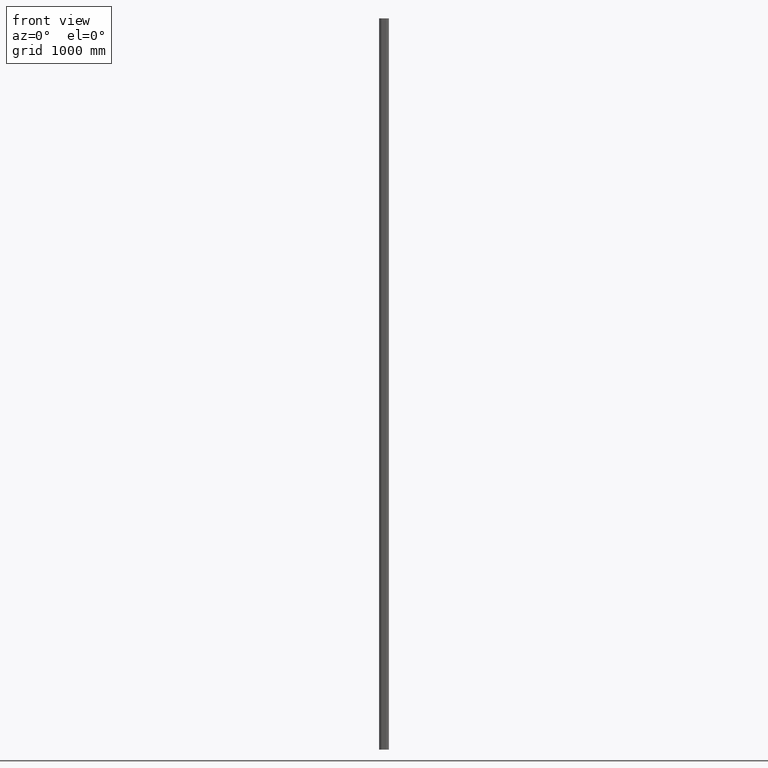
[diagram: clean part render]
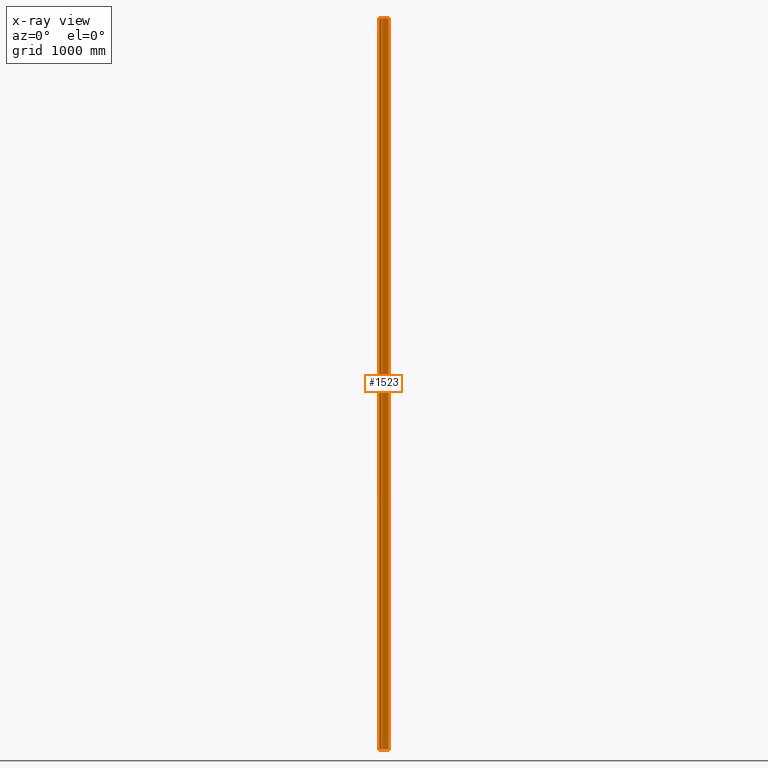
[diagram: x-ray — body ghosted, one internal face saturated and labeled with its STEP entity id]
A machine part, front view, then the same camera in x-ray: the body is ghosted and one INTERNAL B-rep face — a face not visible from any outside direction — is saturated and labeled: STEP entity #1523.
In plain terms, the highlighted face is a freeform B-spline surface patch.
Its self-contained STEP definition (entity closure, byte-faithful):
#38 = CARTESIAN_POINT ( 'NONE',  ( -38.53888054691018539, -1.406978759875032958, -3000.000000000000000 ) ) ;
#52 = CARTESIAN_POINT ( 'NONE',  ( 33.21602684802288508, 9.897086653402725531, -3000.000000000000000 ) ) ;
#165 = CARTESIAN_POINT ( 'NONE',  ( 38.53957975763789534, 1.397872880490210301, 3000.000000000000000 ) ) ;
#213 = CARTESIAN_POINT ( 'NONE',  ( -38.53957975763789534, 1.397872880490219849, -3000.000000000000000 ) ) ;
#234 = CARTESIAN_POINT ( 'NONE',  ( 12.98132575288632928, 17.77677817678706518, 3000.000000000000000 ) ) ;
#272 = CARTESIAN_POINT ( 'NONE',  ( -37.29816237593282580, 5.170512203791696848, -3000.000000000000000 ) ) ;
#351 = CARTESIAN_POINT ( 'NONE',  ( -24.90821135187026059, -14.09688668531120825, 3000.000000000000000 ) ) ;
#466 = VERTEX_POINT ( 'NONE', #10537 ) ;
#648 = LINE ( 'NONE', #13366, #1079 ) ;
#1079 = VECTOR ( 'NONE', #12172, 1000.000000000000000 ) ;
#1162 = CARTESIAN_POINT ( 'NONE',  ( 28.84268964638304666, -12.28711628548776957, 3000.000000000000000 ) ) ;
#1306 = ORIENTED_EDGE ( 'NONE', *, *, #14052, .F. ) ;
#1381 = CARTESIAN_POINT ( 'NONE',  ( 37.60144509639259525, -4.237141637028585706, -3000.000000000000000 ) ) ;
#1431 = CARTESIAN_POINT ( 'NONE',  ( -12.98132575288629020, 17.77677817678707228, -3000.000000000000000 ) ) ;
#1493 = CARTESIAN_POINT ( 'NONE',  ( 37.29816237593282580, 5.170512203791684414, -3000.000000000000000 ) ) ;
#1516 = CARTESIAN_POINT ( 'NONE',  ( 28.84268964638304666, -12.28711628548776957, 3000.000000000000000 ) ) ;
#1523 = ADVANCED_FACE ( 'NONE', ( #7170 ), #16029, .T. ) ;
#1543 = CARTESIAN_POINT ( 'NONE',  ( 24.49264576672874583, 14.65689935218413176, -3000.000000000000000 ) ) ;
#1551 = CARTESIAN_POINT ( 'NONE',  ( 38.53888054691018539, -1.406978759875043616, -3000.000000000000000 ) ) ;
#1574 = CARTESIAN_POINT ( 'NONE',  ( -37.60144509639262367, -4.237141637028573271, 3000.000000000000000 ) ) ;
#1600 = CARTESIAN_POINT ( 'NONE',  ( 35.66612352025637023, -7.068490167699225779, 3000.000000000000000 ) ) ;
#1617 = CARTESIAN_POINT ( 'NONE',  ( 19.55954398313255993, -15.89465264424237390, 3000.000000000000000 ) ) ;
#1737 = CARTESIAN_POINT ( 'NONE',  ( -38.53957975763789534, 1.397872880490219849, 3000.000000000000000 ) ) ;
#2431 = CARTESIAN_POINT ( 'NONE',  ( 19.55954398313255993, -15.89465264424237390, 3000.000000000000000 ) ) ;
#2758 = CARTESIAN_POINT ( 'NONE',  ( -38.53957975763789534, 1.397872880490219849, 3000.000000000000000 ) ) ;
#2812 = CARTESIAN_POINT ( 'NONE',  ( -24.49264576672872096, 14.65689935218414064, -3000.000000000000000 ) ) ;
#2813 = VERTEX_POINT ( 'NONE', #16385 ) ;
#2837 = CARTESIAN_POINT ( 'NONE',  ( 21.43096283216591402, -15.33824190983948021, 3000.000000000000000 ) ) ;
#2863 = CARTESIAN_POINT ( 'NONE',  ( -33.21602684802286376, 9.897086653402739742, -3000.000000000000000 ) ) ;
#2882 = CARTESIAN_POINT ( 'NONE',  ( -28.84268964638307153, -12.28711628548775181, 3000.000000000000000 ) ) ;
#2883 = CARTESIAN_POINT ( 'NONE',  ( 38.53957975763789534, 1.397872880490210301, -3000.000000000000000 ) ) ;
#2919 = CARTESIAN_POINT ( 'NONE',  ( -24.49264576672872096, 14.65689935218414064, 3000.000000000000000 ) ) ;
#2946 = CARTESIAN_POINT ( 'NONE',  ( 38.53888054691018539, -1.406978759875043616, 3000.000000000000000 ) ) ;
#3006 = CARTESIAN_POINT ( 'NONE',  ( -19.55954398313258835, -15.89465264424235968, 3000.000000000000000 ) ) ;
#3053 = CARTESIAN_POINT ( 'NONE',  ( 37.60144509639259525, -4.237141637028585706, 3000.000000000000000 ) ) ;
#3397 = CARTESIAN_POINT ( 'NONE',  ( 19.55954398313255993, -15.89465264424237390, -3000.000000000000000 ) ) ;
#3743 = CARTESIAN_POINT ( 'NONE',  ( 18.63046422156533310, -16.14577533591634406, -3000.000000000000000 ) ) ;
#3898 = DIRECTION ( 'NONE',  ( -0.000000000000000000, -0.000000000000000000, -1.000000000000000000 ) ) ;
#4036 = CARTESIAN_POINT ( 'NONE',  ( -38.53888054691018539, -1.406978759875032958, 3000.000000000000000 ) ) ;
#4092 = CARTESIAN_POINT ( 'NONE',  ( -19.55954398313258835, -15.89465264424235968, 3000.000000000000000 ) ) ;
#4108 = CARTESIAN_POINT ( 'NONE',  ( -24.49264576672872096, 14.65689935218414064, 3000.000000000000000 ) ) ;
#4136 = CARTESIAN_POINT ( 'NONE',  ( -35.66612352025635602, -7.068490167699219562, -3000.000000000000000 ) ) ;
#4156 = CARTESIAN_POINT ( 'NONE',  ( -33.21602684802286376, 9.897086653402739742, 3000.000000000000000 ) ) ;
#4199 = CARTESIAN_POINT ( 'NONE',  ( -21.43096283216595666, -15.33824190983946956, -3000.000000000000000 ) ) ;
#5089 = CARTESIAN_POINT ( 'NONE',  ( 21.43096283216591402, -15.33824190983948021, -3000.000000000000000 ) ) ;
#5347 = CARTESIAN_POINT ( 'NONE',  ( -37.29816237593282580, 5.170512203791696848, -3000.000000000000000 ) ) ;
#5409 = CARTESIAN_POINT ( 'NONE',  ( 12.98132575288632928, 17.77677817678706518, 3000.000000000000000 ) ) ;
#5468 = CARTESIAN_POINT ( 'NONE',  ( 33.21602684802288508, 9.897086653402725531, -3000.000000000000000 ) ) ;
#5475 = CARTESIAN_POINT ( 'NONE',  ( 24.49264576672874583, 14.65689935218413176, -3000.000000000000000 ) ) ;
#5528 = CARTESIAN_POINT ( 'NONE',  ( -38.53888054691018539, -1.406978759875032958, -3000.000000000000000 ) ) ;
#5565 = CARTESIAN_POINT ( 'NONE',  ( -24.49264576672872096, 14.65689935218414064, -3000.000000000000000 ) ) ;
#5594 = CARTESIAN_POINT ( 'NONE',  ( 24.90821135187024638, -14.09688668531122424, 3000.000000000000000 ) ) ;
#5659 = CARTESIAN_POINT ( 'NONE',  ( -38.53888054691018539, -1.406978759875032958, 3000.000000000000000 ) ) ;
#6220 = B_SPLINE_CURVE_WITH_KNOTS ( 'NONE', 3,
 ( #12988, #1617, #2837, #5594, #1516, #10804, #10679, #3053, #2946, #13432, #14734, #6894, #12022, #234, #16086, #6946, #4108, #4156, #8218, #1737, #5659, #1574, #13319, #9415, #2882, #351, #10853, #3006, #12178 ),
 .UNSPECIFIED., .F., .F.,
 ( 4, 1, 1, 1, 1, 1, 1, 1, 1, 1, 1, 1, 1, 1, 1, 1, 1, 1, 1, 1, 1, 1, 1, 1, 1, 1, 4 ),
 ( -1.075211246649062202, -0.9925235099789384563, -0.9098357733088148214, -0.7444602999685674405, -0.5790848266283200596, -0.4137093532880726787, -0.2483338799478250758, -0.08295840660757791696, 0.08241706673266957495, 0.2477925400729168448, 0.5785434867534120507, 0.9092944334339063683, 1.240045380114401352, 1.570796326794895892, 1.901547273475390876, 2.232298220155886526, 2.563049166836380621, 2.893800113516875605, 3.059175586857122653, 3.224551060197370589, 3.389926533537617637, 3.555302006877864684, 3.720677480218112620, 3.886052953558359668, 4.051428426898606716, 4.134116163568730684, 4.216803900238854652 ),
 .UNSPECIFIED. ) ;
#6237 = VECTOR ( 'NONE', #3898, 1000.000000000000000 ) ;
#6375 = CARTESIAN_POINT ( 'NONE',  ( 19.55954398313255993, -15.89465264424237390, -3000.000000000000000 ) ) ;
#6600 = CARTESIAN_POINT ( 'NONE',  ( 12.98132575288632928, 17.77677817678706518, -3000.000000000000000 ) ) ;
#6722 = CARTESIAN_POINT ( 'NONE',  ( -18.63046422156535797, -16.14577533591632985, -3000.000000000000000 ) ) ;
#6765 = CARTESIAN_POINT ( 'NONE',  ( -24.90821135187026059, -14.09688668531120825, -3000.000000000000000 ) ) ;
#6817 = CARTESIAN_POINT ( 'NONE',  ( -32.72388403302107918, -9.791524033345131883, -3000.000000000000000 ) ) ;
#6894 = CARTESIAN_POINT ( 'NONE',  ( 33.21602684802288508, 9.897086653402725531, 3000.000000000000000 ) ) ;
#6946 = CARTESIAN_POINT ( 'NONE',  ( -12.98132575288629020, 17.77677817678707228, 3000.000000000000000 ) ) ;
#7170 = FACE_OUTER_BOUND ( 'NONE', #16259, .T. ) ;
#7188 = CARTESIAN_POINT ( 'NONE',  ( -18.63046422156535797, -16.14577533591633340, -3000.000000000000000 ) ) ;
#7338 = EDGE_CURVE ( 'NONE', #2813, #8911, #10657, .T. ) ;
#7471 = ORIENTED_EDGE ( 'NONE', *, *, #14363, .T. ) ;
#7928 = CARTESIAN_POINT ( 'NONE',  ( 33.21602684802288508, 9.897086653402725531, 3000.000000000000000 ) ) ;
#8121 = CARTESIAN_POINT ( 'NONE',  ( 38.53888054691018539, -1.406978759875043616, -3000.000000000000000 ) ) ;
#8153 = CARTESIAN_POINT ( 'NONE',  ( 35.66612352025637023, -7.068490167699225779, -3000.000000000000000 ) ) ;
#8159 = CARTESIAN_POINT ( 'NONE',  ( -12.98132575288629020, 17.77677817678707228, -3000.000000000000000 ) ) ;
#8189 = CARTESIAN_POINT ( 'NONE',  ( -32.72388403302107918, -9.791524033345131883, -3000.000000000000000 ) ) ;
#8218 = CARTESIAN_POINT ( 'NONE',  ( -37.29816237593282580, 5.170512203791696848, 3000.000000000000000 ) ) ;
#8533 = CARTESIAN_POINT ( 'NONE',  ( -21.43096283216595666, -15.33824190983946956, -3000.000000000000000 ) ) ;
#8911 = VERTEX_POINT ( 'NONE', #12869 ) ;
#9133 = CARTESIAN_POINT ( 'NONE',  ( 24.90821135187024638, -14.09688668531122424, 3000.000000000000000 ) ) ;
#9196 = ORIENTED_EDGE ( 'NONE', *, *, #15595, .T. ) ;
#9228 = CARTESIAN_POINT ( 'NONE',  ( -32.72388403302107918, -9.791524033345131883, 3000.000000000000000 ) ) ;
#9285 = CARTESIAN_POINT ( 'NONE',  ( -35.66612352025635602, -7.068490167699219562, 3000.000000000000000 ) ) ;
#9346 = CARTESIAN_POINT ( 'NONE',  ( 38.53888054691018539, -1.406978759875043616, 3000.000000000000000 ) ) ;
#9399 = CARTESIAN_POINT ( 'NONE',  ( 32.72388403302105075, -9.791524033345146094, -3000.000000000000000 ) ) ;
#9415 = CARTESIAN_POINT ( 'NONE',  ( -32.72388403302107918, -9.791524033345131883, 3000.000000000000000 ) ) ;
#9447 = CARTESIAN_POINT ( 'NONE',  ( -19.55954398313258835, -15.89465264424235968, -3000.000000000000000 ) ) ;
#9713 = LINE ( 'NONE', #10357, #6237 ) ;
#9715 = ORIENTED_EDGE ( 'NONE', *, *, #7338, .F. ) ;
#10160 = CARTESIAN_POINT ( 'NONE',  ( 21.43096283216591402, -15.33824190983948021, -3000.000000000000000 ) ) ;
#10253 = CARTESIAN_POINT ( 'NONE',  ( -37.60144509639262367, -4.237141637028573271, -3000.000000000000000 ) ) ;
#10324 = CARTESIAN_POINT ( 'NONE',  ( 28.84268964638304666, -12.28711628548776957, -3000.000000000000000 ) ) ;
#10357 = CARTESIAN_POINT ( 'NONE',  ( 18.63046422156533310, -16.14577533591634406, 3000.000000000000000 ) ) ;
#10537 = CARTESIAN_POINT ( 'NONE',  ( -18.63046422156535797, -16.14577533591633340, 3000.000000000000000 ) ) ;
#10548 = CARTESIAN_POINT ( 'NONE',  ( -24.90821135187026059, -14.09688668531120825, 3000.000000000000000 ) ) ;
#10657 = B_SPLINE_CURVE_WITH_KNOTS ( 'NONE', 3,
 ( #3743, #3397, #10160, #14859, #13895, #15586, #14330, #13321, #8121, #2883, #13506, #5468, #1543, #11247, #12537, #8159, #5565, #13174, #5347, #14434, #38, #10253, #12247, #8189, #12136, #11122, #8533, #13733, #7188 ),
 .UNSPECIFIED., .F., .F.,
 ( 4, 1, 1, 1, 1, 1, 1, 1, 1, 1, 1, 1, 1, 1, 1, 1, 1, 1, 1, 1, 1, 1, 1, 1, 1, 1, 4 ),
 ( -1.075211246649062202, -0.9925235099789384563, -0.9098357733088148214, -0.7444602999685674405, -0.5790848266283200596, -0.4137093532880726787, -0.2483338799478250758, -0.08295840660757791696, 0.08241706673266957495, 0.2477925400729168448, 0.5785434867534120507, 0.9092944334339063683, 1.240045380114401352, 1.570796326794895892, 1.901547273475390876, 2.232298220155886526, 2.563049166836380621, 2.893800113516875605, 3.059175586857122653, 3.224551060197370589, 3.389926533537617637, 3.555302006877864684, 3.720677480218112620, 3.886052953558359668, 4.051428426898606716, 4.134116163568730684, 4.216803900238854652 ),
 .UNSPECIFIED. ) ;
#10658 = CARTESIAN_POINT ( 'NONE',  ( 1.994931997373328159E-14, 18.86161091160646563, -3000.000000000000000 ) ) ;
#10679 = CARTESIAN_POINT ( 'NONE',  ( 35.66612352025637023, -7.068490167699225779, 3000.000000000000000 ) ) ;
#10714 = CARTESIAN_POINT ( 'NONE',  ( -12.98132575288629020, 17.77677817678707228, 3000.000000000000000 ) ) ;
#10804 = CARTESIAN_POINT ( 'NONE',  ( 32.72388403302105075, -9.791524033345146094, 3000.000000000000000 ) ) ;
#10853 = CARTESIAN_POINT ( 'NONE',  ( -21.43096283216595666, -15.33824190983946956, 3000.000000000000000 ) ) ;
#11122 = CARTESIAN_POINT ( 'NONE',  ( -24.90821135187026059, -14.09688668531120825, -3000.000000000000000 ) ) ;
#11247 = CARTESIAN_POINT ( 'NONE',  ( 12.98132575288632928, 17.77677817678706518, -3000.000000000000000 ) ) ;
#11605 = CARTESIAN_POINT ( 'NONE',  ( 21.43096283216591402, -15.33824190983948021, 3000.000000000000000 ) ) ;
#11889 = CARTESIAN_POINT ( 'NONE',  ( 38.53957975763789534, 1.397872880490210301, -3000.000000000000000 ) ) ;
#11999 = CARTESIAN_POINT ( 'NONE',  ( -37.60144509639262367, -4.237141637028573271, -3000.000000000000000 ) ) ;
#12022 = CARTESIAN_POINT ( 'NONE',  ( 24.49264576672874583, 14.65689935218413176, 3000.000000000000000 ) ) ;
#12057 = CARTESIAN_POINT ( 'NONE',  ( 1.994931997373328159E-14, 18.86161091160646563, 3000.000000000000000 ) ) ;
#12098 = CARTESIAN_POINT ( 'NONE',  ( -33.21602684802286376, 9.897086653402739742, 3000.000000000000000 ) ) ;
#12136 = CARTESIAN_POINT ( 'NONE',  ( -28.84268964638307153, -12.28711628548775181, -3000.000000000000000 ) ) ;
#12172 = DIRECTION ( 'NONE',  ( -0.000000000000000000, -0.000000000000000000, -1.000000000000000000 ) ) ;
#12178 = CARTESIAN_POINT ( 'NONE',  ( -18.63046422156535797, -16.14577533591633340, 3000.000000000000000 ) ) ;
#12247 = CARTESIAN_POINT ( 'NONE',  ( -35.66612352025635602, -7.068490167699219562, -3000.000000000000000 ) ) ;
#12537 = CARTESIAN_POINT ( 'NONE',  ( 1.994931997373328159E-14, 18.86161091160646563, -3000.000000000000000 ) ) ;
#12869 = CARTESIAN_POINT ( 'NONE',  ( -18.63046422156535797, -16.14577533591633340, -3000.000000000000000 ) ) ;
#12988 = CARTESIAN_POINT ( 'NONE',  ( 18.63046422156533310, -16.14577533591634406, 3000.000000000000000 ) ) ;
#13174 = CARTESIAN_POINT ( 'NONE',  ( -33.21602684802286376, 9.897086653402739742, -3000.000000000000000 ) ) ;
#13248 = CARTESIAN_POINT ( 'NONE',  ( 24.49264576672874583, 14.65689935218413176, 3000.000000000000000 ) ) ;
#13300 = CARTESIAN_POINT ( 'NONE',  ( 37.60144509639259525, -4.237141637028585706, 3000.000000000000000 ) ) ;
#13319 = CARTESIAN_POINT ( 'NONE',  ( -35.66612352025635602, -7.068490167699219562, 3000.000000000000000 ) ) ;
#13321 = CARTESIAN_POINT ( 'NONE',  ( 37.60144509639259525, -4.237141637028585706, -3000.000000000000000 ) ) ;
#13350 = CARTESIAN_POINT ( 'NONE',  ( 32.72388403302105075, -9.791524033345146094, 3000.000000000000000 ) ) ;
#13366 = CARTESIAN_POINT ( 'NONE',  ( -18.63046422156535797, -16.14577533591633340, 3000.000000000000000 ) ) ;
#13432 = CARTESIAN_POINT ( 'NONE',  ( 38.53957975763789534, 1.397872880490210301, 3000.000000000000000 ) ) ;
#13506 = CARTESIAN_POINT ( 'NONE',  ( 37.29816237593282580, 5.170512203791684414, -3000.000000000000000 ) ) ;
#13733 = CARTESIAN_POINT ( 'NONE',  ( -19.55954398313258835, -15.89465264424235968, -3000.000000000000000 ) ) ;
#13895 = CARTESIAN_POINT ( 'NONE',  ( 28.84268964638304666, -12.28711628548776957, -3000.000000000000000 ) ) ;
#14052 = EDGE_CURVE ( 'NONE', #16439, #2813, #9713, .T. ) ;
#14330 = CARTESIAN_POINT ( 'NONE',  ( 35.66612352025637023, -7.068490167699225779, -3000.000000000000000 ) ) ;
#14363 = EDGE_CURVE ( 'NONE', #466, #8911, #648, .T. ) ;
#14434 = CARTESIAN_POINT ( 'NONE',  ( -38.53957975763789534, 1.397872880490219849, -3000.000000000000000 ) ) ;
#14444 = CARTESIAN_POINT ( 'NONE',  ( -18.63046422156535797, -16.14577533591632985, 3000.000000000000000 ) ) ;
#14549 = CARTESIAN_POINT ( 'NONE',  ( -28.84268964638307153, -12.28711628548775181, 3000.000000000000000 ) ) ;
#14604 = CARTESIAN_POINT ( 'NONE',  ( -37.29816237593282580, 5.170512203791696848, 3000.000000000000000 ) ) ;
#14665 = CARTESIAN_POINT ( 'NONE',  ( 37.29816237593282580, 5.170512203791684414, 3000.000000000000000 ) ) ;
#14734 = CARTESIAN_POINT ( 'NONE',  ( 37.29816237593282580, 5.170512203791684414, 3000.000000000000000 ) ) ;
#14859 = CARTESIAN_POINT ( 'NONE',  ( 24.90821135187024638, -14.09688668531122424, -3000.000000000000000 ) ) ;
#15464 = CARTESIAN_POINT ( 'NONE',  ( 18.63046422156533310, -16.14577533591634051, 3000.000000000000000 ) ) ;
#15586 = CARTESIAN_POINT ( 'NONE',  ( 32.72388403302105075, -9.791524033345146094, -3000.000000000000000 ) ) ;
#15595 = EDGE_CURVE ( 'NONE', #16439, #466, #6220, .T. ) ;
#15746 = CARTESIAN_POINT ( 'NONE',  ( 18.63046422156533310, -16.14577533591634406, 3000.000000000000000 ) ) ;
#15789 = CARTESIAN_POINT ( 'NONE',  ( -28.84268964638307153, -12.28711628548775181, -3000.000000000000000 ) ) ;
#15858 = CARTESIAN_POINT ( 'NONE',  ( -37.60144509639262367, -4.237141637028573271, 3000.000000000000000 ) ) ;
#15961 = CARTESIAN_POINT ( 'NONE',  ( -21.43096283216595666, -15.33824190983946956, 3000.000000000000000 ) ) ;
#16029 = B_SPLINE_SURFACE_WITH_KNOTS ( 'NONE', 3, 1, ( 
 ( #15464, #16779 ),
 ( #2431, #6375 ),
 ( #11605, #5089 ),
 ( #9133, #16831 ),
 ( #1162, #10324 ),
 ( #13350, #9399 ),
 ( #1600, #8153 ),
 ( #13300, #1381 ),
 ( #9346, #1551 ),
 ( #165, #11889 ),
 ( #14665, #1493 ),
 ( #7928, #52 ),
 ( #13248, #5475 ),
 ( #5409, #6600 ),
 ( #12057, #10658 ),
 ( #10714, #1431 ),
 ( #2919, #2812 ),
 ( #12098, #2863 ),
 ( #14604, #272 ),
 ( #2758, #213 ),
 ( #4036, #5528 ),
 ( #15858, #11999 ),
 ( #9285, #4136 ),
 ( #9228, #6817 ),
 ( #14549, #15789 ),
 ( #10548, #6765 ),
 ( #15961, #4199 ),
 ( #4092, #9447 ),
 ( #14444, #6722 ) ),
 .UNSPECIFIED., .F., .F., .F.,
 ( 4, 1, 1, 1, 1, 1, 1, 1, 1, 1, 1, 1, 1, 1, 1, 1, 1, 1, 1, 1, 1, 1, 1, 1, 1, 1, 4 ),
 ( 2, 2 ),
 ( -1.075211246649062202, -0.9925235099789384563, -0.9098357733088148214, -0.7444602999685674405, -0.5790848266283200596, -0.4137093532880726232, -0.2483338799478252423, -0.08295840660757783369, 0.08241706673266956107, 0.2477925400729169558, 0.5785434867534118286, 0.9092944334339065904, 1.240045380114401352, 1.570796326794896114, 1.901547273475390876, 2.232298220155885637, 2.563049166836380621, 2.893800113516875605, 3.059175586857123097, 3.224551060197370589, 3.389926533537617637, 3.555302006877865129, 3.720677480218112620, 3.886052953558359668, 4.051428426898606716, 4.134116163568730684, 4.216803900238854652 ),
 ( 0.000000000000000000, 1.000000000000000000 ),
 .UNSPECIFIED. ) ;
#16086 = CARTESIAN_POINT ( 'NONE',  ( 1.994931997373328159E-14, 18.86161091160646563, 3000.000000000000000 ) ) ;
#16259 = EDGE_LOOP ( 'NONE', ( #9715, #1306, #9196, #7471 ) ) ;
#16385 = CARTESIAN_POINT ( 'NONE',  ( 18.63046422156533310, -16.14577533591634406, -3000.000000000000000 ) ) ;
#16439 = VERTEX_POINT ( 'NONE', #15746 ) ;
#16779 = CARTESIAN_POINT ( 'NONE',  ( 18.63046422156533310, -16.14577533591634051, -3000.000000000000000 ) ) ;
#16831 = CARTESIAN_POINT ( 'NONE',  ( 24.90821135187024638, -14.09688668531122424, -3000.000000000000000 ) ) ;